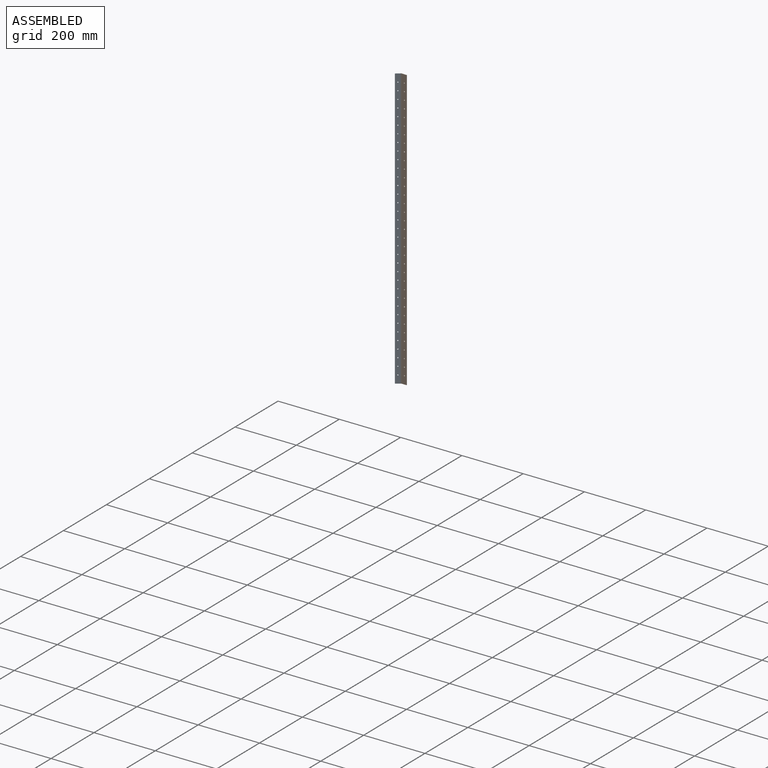
[diagram: assembled view]
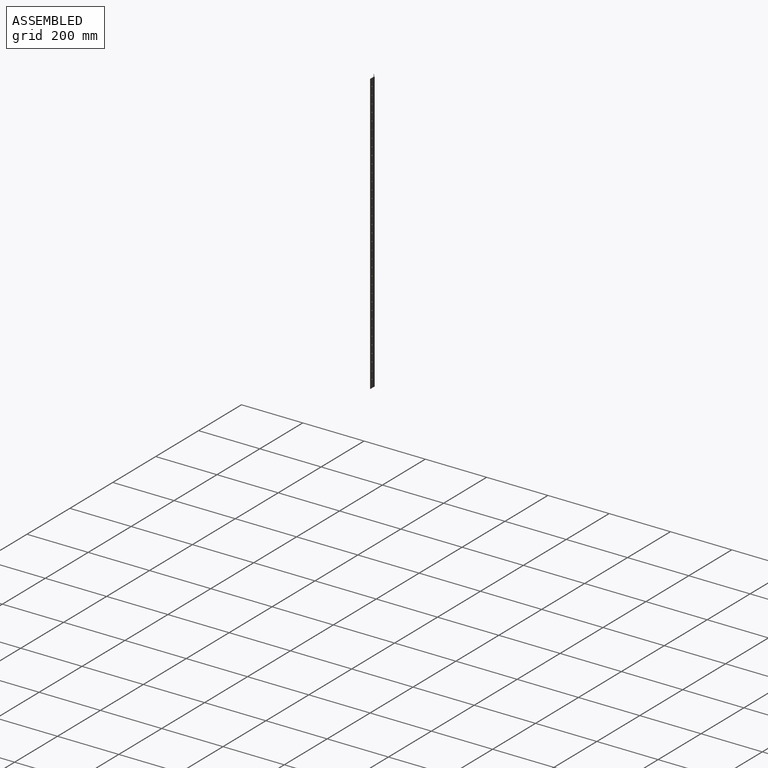
[diagram: assembled view, second angle]
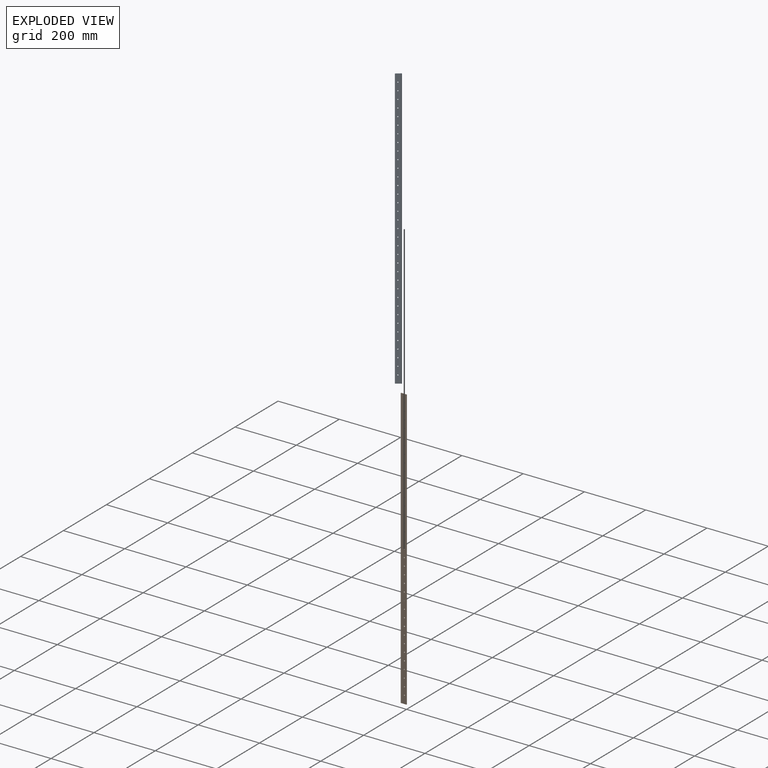
[diagram: exploded view]
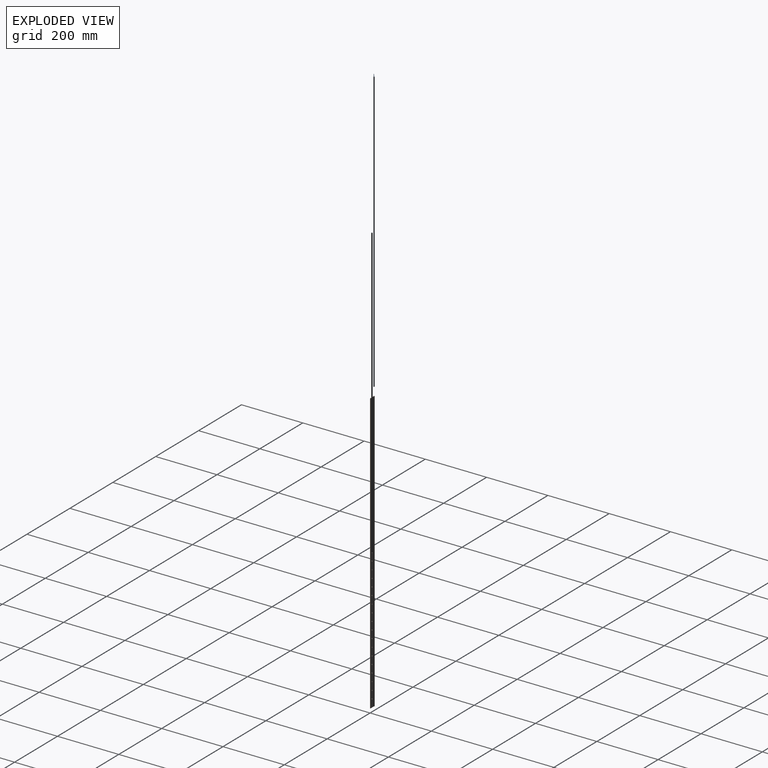
[diagram: exploded view, second angle]
ASSEMBLY  parts=2 mates=2
PART A: 41 faces, bbox 19.1x3.2x914.4 mm
  f0: plane 914.4x16.09mm, normal (0,1,0), area 14433.5mm2, adj f1,f3,f4,f5,f6,f7,f8,f9
  f1: plane 914.4x1.59mm, normal (-1,0,0), area 1451.6mm2, adj f0,f2,f4,f5
  f2: plane 914.4x16.09mm, normal (0,-1,0), area 14433.5mm2, adj f1,f3,f4,f5,f6,f7,f8,f9
  f3: cylinder r=1.59mm len=914.4mm, axis (0,0,-1), area 7600.6mm2, adj f0,f2,f4,f5
  f4: plane 19.05x3.18mm, normal (0,0,1), area 33.2mm2, adj f0,f1,f2,f3
  f5: plane 19.05x3.18mm, normal (0,0,-1), area 33.2mm2, adj f0,f1,f2,f3
  f6: cylinder r=1.59mm len=3.18mm, axis (0,-1,0), area 15.8mm2, adj f0,f2
  f7: cylinder r=1.59mm len=3.18mm, axis (0,-1,0), area 15.8mm2, adj f0,f2
  f8: cylinder r=1.59mm len=3.18mm, axis (0,-1,0), area 15.8mm2, adj f0,f2
  f9: cylinder r=1.59mm len=3.18mm, axis (0,-1,0), area 15.8mm2, adj f0,f2
  f10: cylinder r=1.59mm len=3.18mm, axis (0,-1,0), area 15.8mm2, adj f0,f2
  f11: cylinder r=1.59mm len=3.18mm, axis (0,-1,0), area 15.8mm2, adj f0,f2
  f12: cylinder r=1.59mm len=3.18mm, axis (0,-1,0), area 15.8mm2, adj f0,f2
  f13: cylinder r=1.59mm len=3.18mm, axis (0,-1,0), area 15.8mm2, adj f0,f2
  f14: cylinder r=1.59mm len=3.18mm, axis (0,-1,0), area 15.8mm2, adj f0,f2
  f15: cylinder r=1.59mm len=3.18mm, axis (0,-1,0), area 15.8mm2, adj f0,f2
  f16: cylinder r=1.59mm len=3.18mm, axis (0,-1,0), area 15.8mm2, adj f0,f2
  f17: cylinder r=1.59mm len=3.18mm, axis (0,-1,0), area 15.8mm2, adj f0,f2
  f18: cylinder r=1.59mm len=3.18mm, axis (0,-1,0), area 15.8mm2, adj f0,f2
  f19: cylinder r=1.59mm len=3.18mm, axis (0,-1,0), area 15.8mm2, adj f0,f2
  f20: cylinder r=1.59mm len=3.18mm, axis (0,-1,0), area 15.8mm2, adj f0,f2
  f21: cylinder r=1.59mm len=3.18mm, axis (0,-1,0), area 15.8mm2, adj f0,f2
  f22: cylinder r=1.59mm len=3.18mm, axis (0,-1,0), area 15.8mm2, adj f0,f2
  f23: cylinder r=1.59mm len=3.18mm, axis (0,-1,0), area 15.8mm2, adj f0,f2
  f24: cylinder r=1.59mm len=3.18mm, axis (0,-1,0), area 15.8mm2, adj f0,f2
  f25: cylinder r=1.59mm len=3.18mm, axis (0,-1,0), area 15.8mm2, adj f0,f2
  f26: cylinder r=1.59mm len=3.18mm, axis (0,-1,0), area 15.8mm2, adj f0,f2
  f27: cylinder r=1.59mm len=3.18mm, axis (0,-1,0), area 15.8mm2, adj f0,f2
  f28: cylinder r=1.59mm len=3.18mm, axis (0,-1,0), area 15.8mm2, adj f0,f2
  f29: cylinder r=1.59mm len=3.18mm, axis (0,-1,0), area 15.8mm2, adj f0,f2
  f30: cylinder r=1.59mm len=3.18mm, axis (0,-1,0), area 15.8mm2, adj f0,f2
  f31: cylinder r=1.59mm len=3.18mm, axis (0,-1,0), area 15.8mm2, adj f0,f2
  f32: cylinder r=1.59mm len=3.18mm, axis (0,-1,0), area 15.8mm2, adj f0,f2
  f33: cylinder r=1.59mm len=3.18mm, axis (0,-1,0), area 15.8mm2, adj f0,f2
  f34: cylinder r=1.59mm len=3.18mm, axis (0,-1,0), area 15.8mm2, adj f0,f2
  f35: cylinder r=1.59mm len=3.18mm, axis (0,-1,0), area 15.8mm2, adj f0,f2
  f36: cylinder r=1.59mm len=3.18mm, axis (0,-1,0), area 15.8mm2, adj f0,f2
  f37: cylinder r=1.59mm len=3.18mm, axis (0,-1,0), area 15.8mm2, adj f0,f2
  f38: cylinder r=1.59mm len=3.18mm, axis (0,-1,0), area 15.8mm2, adj f0,f2
  f39: cylinder r=1.59mm len=3.18mm, axis (0,-1,0), area 15.8mm2, adj f0,f2
  f40: cylinder r=1.59mm len=3.18mm, axis (0,-1,0), area 15.8mm2, adj f0,f2
PART B: 41 faces, bbox 19.1x3.2x914.4 mm
  f0: plane 914.4x16.09mm, normal (0,-1,0), area 14433.5mm2, adj f2,f3,f4,f5,f6,f7,f8,f9
  f1: plane 914.4x16.09mm, normal (0,1,0), area 14433.5mm2, adj f2,f3,f4,f5,f6,f7,f8,f9
  f2: cylinder r=1.59mm len=914.4mm, axis (0,0,-1), area 7600.6mm2, adj f0,f1,f4,f5
  f3: plane 914.4x1.59mm, normal (1,0,0), area 1451.6mm2, adj f0,f1,f4,f5
  f4: plane 19.05x3.18mm, normal (0,0,1), area 33.2mm2, adj f0,f1,f2,f3
  f5: plane 19.05x3.18mm, normal (0,0,-1), area 33.2mm2, adj f0,f1,f2,f3
  f6: cylinder r=1.59mm len=3.18mm, axis (0,-1,0), area 15.8mm2, adj f0,f1
  f7: cylinder r=1.59mm len=3.18mm, axis (0,-1,0), area 15.8mm2, adj f0,f1
  f8: cylinder r=1.59mm len=3.18mm, axis (0,-1,0), area 15.8mm2, adj f0,f1
  f9: cylinder r=1.59mm len=3.18mm, axis (0,-1,0), area 15.8mm2, adj f0,f1
  f10: cylinder r=1.59mm len=3.18mm, axis (0,-1,0), area 15.8mm2, adj f0,f1
  f11: cylinder r=1.59mm len=3.18mm, axis (0,-1,0), area 15.8mm2, adj f0,f1
  f12: cylinder r=1.59mm len=3.18mm, axis (0,-1,0), area 15.8mm2, adj f0,f1
  f13: cylinder r=1.59mm len=3.18mm, axis (0,-1,0), area 15.8mm2, adj f0,f1
  f14: cylinder r=1.59mm len=3.18mm, axis (0,-1,0), area 15.8mm2, adj f0,f1
  f15: cylinder r=1.59mm len=3.18mm, axis (0,-1,0), area 15.8mm2, adj f0,f1
  f16: cylinder r=1.59mm len=3.18mm, axis (0,-1,0), area 15.8mm2, adj f0,f1
  f17: cylinder r=1.59mm len=3.18mm, axis (0,-1,0), area 15.8mm2, adj f0,f1
  f18: cylinder r=1.59mm len=3.18mm, axis (0,-1,0), area 15.8mm2, adj f0,f1
  f19: cylinder r=1.59mm len=3.18mm, axis (0,-1,0), area 15.8mm2, adj f0,f1
  f20: cylinder r=1.59mm len=3.18mm, axis (0,-1,0), area 15.8mm2, adj f0,f1
  f21: cylinder r=1.59mm len=3.18mm, axis (0,-1,0), area 15.8mm2, adj f0,f1
  f22: cylinder r=1.59mm len=3.18mm, axis (0,-1,0), area 15.8mm2, adj f0,f1
  f23: cylinder r=1.59mm len=3.18mm, axis (0,-1,0), area 15.8mm2, adj f0,f1
  f24: cylinder r=1.59mm len=3.18mm, axis (0,-1,0), area 15.8mm2, adj f0,f1
  f25: cylinder r=1.59mm len=3.18mm, axis (0,-1,0), area 15.8mm2, adj f0,f1
  f26: cylinder r=1.59mm len=3.18mm, axis (0,-1,0), area 15.8mm2, adj f0,f1
  f27: cylinder r=1.59mm len=3.18mm, axis (0,-1,0), area 15.8mm2, adj f0,f1
  f28: cylinder r=1.59mm len=3.18mm, axis (0,-1,0), area 15.8mm2, adj f0,f1
  f29: cylinder r=1.59mm len=3.18mm, axis (0,-1,0), area 15.8mm2, adj f0,f1
  f30: cylinder r=1.59mm len=3.18mm, axis (0,-1,0), area 15.8mm2, adj f0,f1
  f31: cylinder r=1.59mm len=3.18mm, axis (0,-1,0), area 15.8mm2, adj f0,f1
  f32: cylinder r=1.59mm len=3.18mm, axis (0,-1,0), area 15.8mm2, adj f0,f1
  f33: cylinder r=1.59mm len=3.18mm, axis (0,-1,0), area 15.8mm2, adj f0,f1
  f34: cylinder r=1.59mm len=3.18mm, axis (0,-1,0), area 15.8mm2, adj f0,f1
  f35: cylinder r=1.59mm len=3.18mm, axis (0,-1,0), area 15.8mm2, adj f0,f1
  f36: cylinder r=1.59mm len=3.18mm, axis (0,-1,0), area 15.8mm2, adj f0,f1
  f37: cylinder r=1.59mm len=3.18mm, axis (0,-1,0), area 15.8mm2, adj f0,f1
  f38: cylinder r=1.59mm len=3.18mm, axis (0,-1,0), area 15.8mm2, adj f0,f1
  f39: cylinder r=1.59mm len=3.18mm, axis (0,-1,0), area 15.8mm2, adj f0,f1
  f40: cylinder r=1.59mm len=3.18mm, axis (0,-1,0), area 15.8mm2, adj f0,f1
PLACE A rot(axis=(0,0,1),37.2deg) t=(-17.46,0.79,0)mm
PLACE B t=(-39.69,0.79,0)mm
MATE planar A.f3 <-> B.f2  axis (0,0,-1) through (-17.46,0.79,0)mm
MATE revolute A.f3 <-> B.f2  axis (0,0,-1) through (-17.46,0.79,457.2)mm
